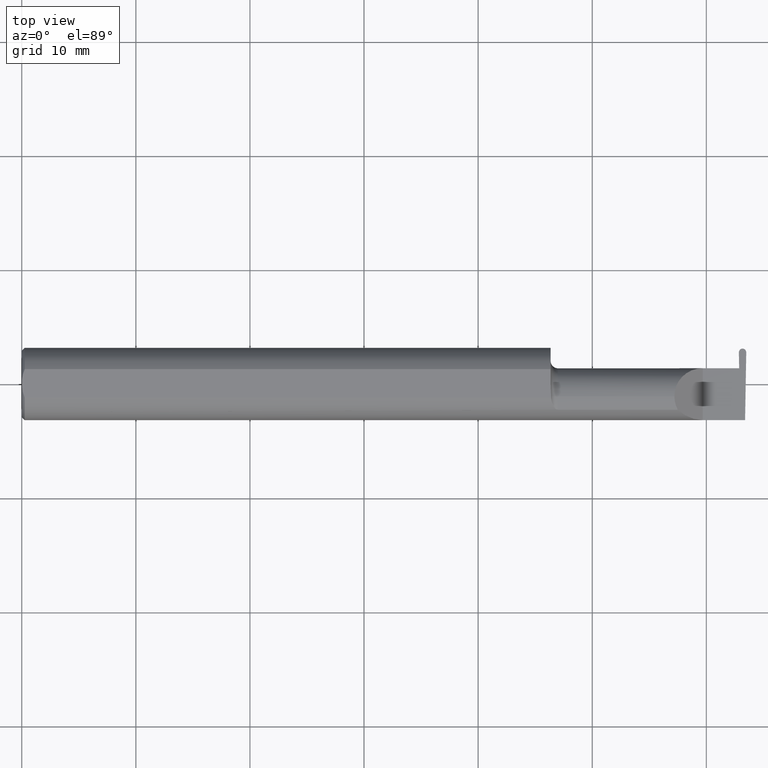
[diagram: clean part render]
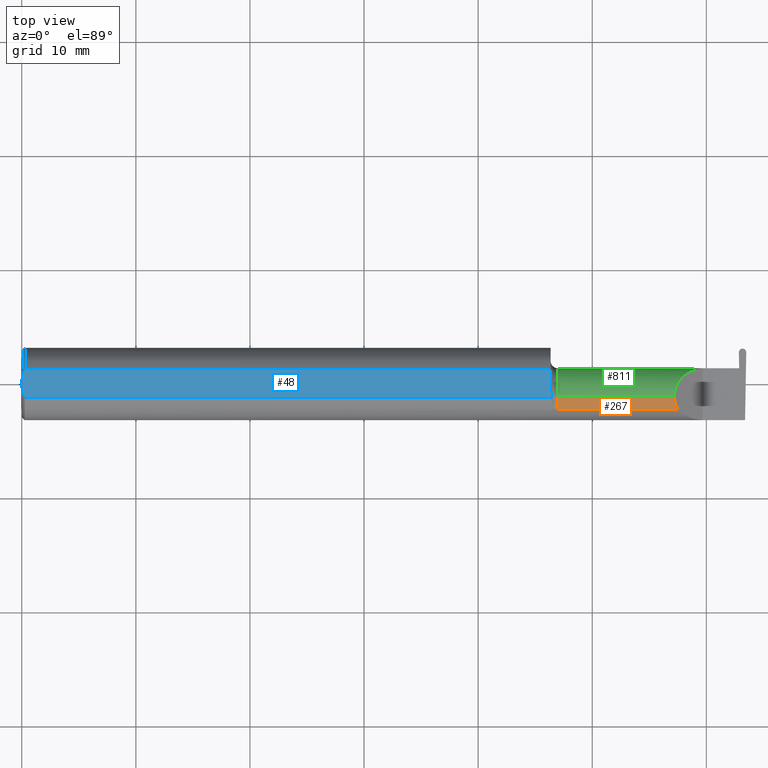
[diagram: same view with three faces highlighted in distinct colors, each labeled with its STEP entity id]
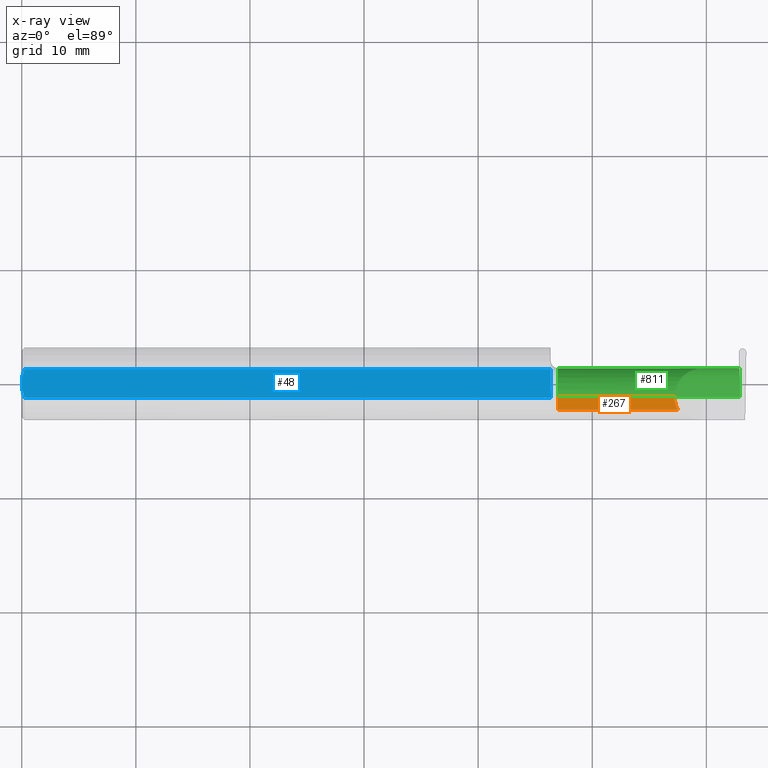
[diagram: x-ray of the same camera — body ghosted, the three highlighted faces saturated]
A machine part, top view with three faces highlighted in distinct colors.
The next image is the same camera in x-ray (body ghosted, the three faces saturated) — at least one of them is partly hidden behind the body in this view.
Their STEP definitions:

[orange] entity #267 — the highlighted cylindrical surface (edge-blend (fillet) strip) has radius 2.4892 mm, axis along (-1, -0, -0).
#1 = DIRECTION ( 'NONE',  ( -1.000000000000000000, -0.000000000000000000, -0.000000000000000000 ) ) ;
#25 = ORIENTED_EDGE ( 'NONE', *, *, #634, .T. ) ;
#28 = CIRCLE ( 'NONE', #102, 0.09800000000000003153 ) ;
#60 = DIRECTION ( 'NONE',  ( -1.000000000000000000, -0.000000000000000000, -0.000000000000000000 ) ) ;
#67 = LINE ( 'NONE', #569, #700 ) ;
#94 = VECTOR ( 'NONE', #320, 39.37007874015748143 ) ;
#102 = AXIS2_PLACEMENT_3D ( 'NONE', #376, #682, #456 ) ;
#124 = CYLINDRICAL_SURFACE ( 'NONE', #790, 0.09800000000000003153 ) ;
#130 = ORIENTED_EDGE ( 'NONE', *, *, #315, .T. ) ;
#133 = VERTEX_POINT ( 'NONE', #537 ) ;
#139 = CARTESIAN_POINT ( 'NONE',  ( 2.255977500337024377, -0.07607783494366260335, 0.09402249966297457351 ) ) ;
#173 = ORIENTED_EDGE ( 'NONE', *, *, #219, .F. ) ;
#200 = CARTESIAN_POINT ( 'NONE',  ( 1.849999999999999867, -0.04400000000000004602, 0.09800000000000003153 ) ) ;
#219 = EDGE_CURVE ( 'NONE', #133, #266, #28, .T. ) ;
#230 = CARTESIAN_POINT ( 'NONE',  ( 2.263691591372603895, -0.09042045454545419303, 0.08630840862739529162 ) ) ;
#266 = VERTEX_POINT ( 'NONE', #200 ) ;
#267 = ADVANCED_FACE ( 'NONE', ( #614 ), #124, .T. ) ;
#313 = CARTESIAN_POINT ( 'NONE',  ( 1.824999999999999956, -0.04400000000000004602, 0.000000000000000000 ) ) ;
#315 = EDGE_CURVE ( 'NONE', #635, #266, #67, .T. ) ;
#320 = DIRECTION ( 'NONE',  ( 1.000000000000000000, 0.000000000000000000, 0.000000000000000000 ) ) ;
#359 = EDGE_CURVE ( 'NONE', #495, #635, #427, .T. ) ;
#376 = CARTESIAN_POINT ( 'NONE',  ( 1.849999999999999867, -0.04400000000000004602, 0.000000000000000000 ) ) ;
#379 = CARTESIAN_POINT ( 'NONE',  ( 2.251999999999998892, -0.04400000000000004602, 0.09800000000000003153 ) ) ;
#391 = ORIENTED_EDGE ( 'NONE', *, *, #359, .T. ) ;
#410 = CARTESIAN_POINT ( 'NONE',  ( 2.251999999999998892, -0.06028551311893192571, 0.09800000000000003153 ) ) ;
#427 =( BOUNDED_CURVE ( )  B_SPLINE_CURVE ( 3, ( #781, #139, #410, #525 ),
 .UNSPECIFIED., .F., .T. ) 
 B_SPLINE_CURVE_WITH_KNOTS ( ( 4, 4 ),
 ( 5.789722842198298025, 6.283185307179586232 ),
 .UNSPECIFIED. ) 
 CURVE ( )  GEOMETRIC_REPRESENTATION_ITEM ( )  RATIONAL_B_SPLINE_CURVE ( ( 1.000000000000000000, 0.9798106333074688701, 0.9798106333074688701, 1.000000000000000000 ) ) 
 REPRESENTATION_ITEM ( '' )  );
#456 = DIRECTION ( 'NONE',  ( 0.000000000000000000, 0.000000000000000000, 1.000000000000000000 ) ) ;
#495 = VERTEX_POINT ( 'NONE', #230 ) ;
#525 = CARTESIAN_POINT ( 'NONE',  ( 2.251999999999998892, -0.04400000000000004602, 0.09800000000000003153 ) ) ;
#537 = CARTESIAN_POINT ( 'NONE',  ( 1.849999999999999867, -0.09042045454545430405, 0.08630840862739518060 ) ) ;
#569 = CARTESIAN_POINT ( 'NONE',  ( 1.824999999999999956, -0.04400000000000004602, 0.09800000000000003153 ) ) ;
#601 = LINE ( 'NONE', #805, #94 ) ;
#614 = FACE_OUTER_BOUND ( 'NONE', #722, .T. ) ;
#634 = EDGE_CURVE ( 'NONE', #133, #495, #601, .T. ) ;
#635 = VERTEX_POINT ( 'NONE', #379 ) ;
#682 = DIRECTION ( 'NONE',  ( -1.000000000000000000, -0.000000000000000000, -0.000000000000000000 ) ) ;
#700 = VECTOR ( 'NONE', #1, 39.37007874015748143 ) ;
#722 = EDGE_LOOP ( 'NONE', ( #391, #130, #173, #25 ) ) ;
#781 = CARTESIAN_POINT ( 'NONE',  ( 2.263691591372603895, -0.09042045454545419303, 0.08630840862739529162 ) ) ;
#790 = AXIS2_PLACEMENT_3D ( 'NONE', #313, #60, #806 ) ;
#805 = CARTESIAN_POINT ( 'NONE',  ( 2.162237909999999985, -0.09042045454545441507, 0.08630840862739512509 ) ) ;
#806 = DIRECTION ( 'NONE',  ( 0.000000000000000000, 0.000000000000000000, 1.000000000000000000 ) ) ;

[blue] entity #48 — the highlighted planar face has unit normal (0, 0, 1).
#11 = ORIENTED_EDGE ( 'NONE', *, *, #184, .F. ) ;
#24 = CARTESIAN_POINT ( 'NONE',  ( 1.824999999999999956, -0.0003651515414570668193, 0.1149999999999999217 ) ) ;
#26 = CARTESIAN_POINT ( 'NONE',  ( 2.753179778023443269, 0.1250000000000000278, 0.1149999999999999217 ) ) ;
#38 = EDGE_CURVE ( 'NONE', #690, #465, #174, .T. ) ;
#48 = ADVANCED_FACE ( 'NONE', ( #597 ), #137, .T. ) ;
#55 = CARTESIAN_POINT ( 'NONE',  ( 0.000000000000000000, 0.04898979485566374442, 0.1149999999999999217 ) ) ;
#84 = CARTESIAN_POINT ( 'NONE',  ( 1.824999999999999956, -0.0003651515414570668193, 0.1149999999999999217 ) ) ;
#109 = CARTESIAN_POINT ( 'NONE',  ( 1.826314561435346207, -0.04400000000000004602, 0.1149999999999999217 ) ) ;
#127 = CARTESIAN_POINT ( 'NONE',  ( 0.000000000000000000, -0.04898979485566374442, 0.1149999999999999217 ) ) ;
#129 = VERTEX_POINT ( 'NONE', #291 ) ;
#137 = PLANE ( 'NONE',  #226 ) ;
#152 = B_SPLINE_CURVE_WITH_KNOTS ( 'NONE', 3,
 ( #796, #788, #225, #420, #812, #630 ),
 .UNSPECIFIED., .F., .F.,
 ( 4, 2, 4 ),
 ( 0.001061950514642623312, 0.001696734447512964709, 0.002331518380383306322 ),
 .UNSPECIFIED. ) ;
#174 = B_SPLINE_CURVE_WITH_KNOTS ( 'NONE', 3,
 ( #644, #346, #591, #706, #651, #84 ),
 .UNSPECIFIED., .F., .F.,
 ( 4, 2, 4 ),
 ( 0.009445492519198586678, 0.009997058688341184038, 0.01054862485748378140 ),
 .UNSPECIFIED. ) ;
#184 = EDGE_CURVE ( 'NONE', #767, #129, #152, .T. ) ;
#185 = LINE ( 'NONE', #214, #227 ) ;
#194 = ORIENTED_EDGE ( 'NONE', *, *, #738, .T. ) ;
#197 = CARTESIAN_POINT ( 'NONE',  ( 1.642610067308552155E-16, 0.01684316307400865464, 0.1149999999999999217 ) ) ;
#214 = CARTESIAN_POINT ( 'NONE',  ( 1.824999999999999956, 0.1250000000000000278, 0.1149999999999999217 ) ) ;
#225 = CARTESIAN_POINT ( 'NONE',  ( 0.004414142251465132810, -0.03315347577847933824, 0.1149999999999999356 ) ) ;
#226 = AXIS2_PLACEMENT_3D ( 'NONE', #26, #335, #396 ) ;
#227 = VECTOR ( 'NONE', #584, 39.37007874015748143 ) ;
#239 = EDGE_CURVE ( 'NONE', #129, #684, #629, .T. ) ;
#249 = LINE ( 'NONE', #127, #616 ) ;
#254 = EDGE_CURVE ( 'NONE', #808, #690, #435, .T. ) ;
#255 = CARTESIAN_POINT ( 'NONE',  ( 1.826299368641400855, -0.04732662288241423765, 0.1149999999999999356 ) ) ;
#260 = DIRECTION ( 'NONE',  ( -1.000000000000000000, -0.000000000000000000, -0.000000000000000000 ) ) ;
#268 = CARTESIAN_POINT ( 'NONE',  ( 1.826278290187167919, -0.04898979485482030799, 0.1149999999999999217 ) ) ;
#285 = VECTOR ( 'NONE', #260, 39.37007874015748143 ) ;
#291 = CARTESIAN_POINT ( 'NONE',  ( 0.000000000000000000, 3.414809992080329023E-17, 0.1149999999999999217 ) ) ;
#295 = EDGE_LOOP ( 'NONE', ( #194, #503, #449, #759, #654, #672, #11 ) ) ;
#321 = CARTESIAN_POINT ( 'NONE',  ( 1.826314561435345762, -0.04483155449642588219, 0.1149999999999999356 ) ) ;
#330 = EDGE_CURVE ( 'NONE', #465, #726, #185, .T. ) ;
#335 = DIRECTION ( 'NONE',  ( 0.000000000000000000, 0.000000000000000000, 1.000000000000000000 ) ) ;
#346 = CARTESIAN_POINT ( 'NONE',  ( 1.826314561435345762, -0.03672135622230197904, 0.1149999999999999356 ) ) ;
#380 = CARTESIAN_POINT ( 'NONE',  ( 0.003880275146595849479, 0.03337499979622342988, 0.1149999999999999217 ) ) ;
#396 = DIRECTION ( 'NONE',  ( 1.000000000000000000, 0.000000000000000000, -0.000000000000000000 ) ) ;
#420 = CARTESIAN_POINT ( 'NONE',  ( 0.0009328476361608245343, -0.01672844127736827086, 0.1149999999999999217 ) ) ;
#435 = B_SPLINE_CURVE_WITH_KNOTS ( 'NONE', 3,
 ( #447, #693, #255, #437, #321, #687 ),
 .UNSPECIFIED., .F., .F.,
 ( 4, 2, 4 ),
 ( 0.009319464280412609325, 0.009382478399805598002, 0.009445492519198586678 ),
 .UNSPECIFIED. ) ;
#437 = CARTESIAN_POINT ( 'NONE',  ( 1.826311508822838103, -0.04566321385529986676, 0.1149999999999999217 ) ) ;
#447 = CARTESIAN_POINT ( 'NONE',  ( 1.826278290187167919, -0.04898979485482030799, 0.1149999999999999217 ) ) ;
#449 = ORIENTED_EDGE ( 'NONE', *, *, #38, .T. ) ;
#451 = CARTESIAN_POINT ( 'NONE',  ( 0.000000000000000000, 3.414809992080329023E-17, 0.1149999999999999217 ) ) ;
#465 = VERTEX_POINT ( 'NONE', #24 ) ;
#503 = ORIENTED_EDGE ( 'NONE', *, *, #254, .T. ) ;
#505 = CARTESIAN_POINT ( 'NONE',  ( 1.824999999999999956, 0.04898979485566374442, 0.1149999999999999217 ) ) ;
#560 = CARTESIAN_POINT ( 'NONE',  ( 0.01000000000000042348, 0.04898979485566374442, 0.1149999999999999217 ) ) ;
#584 = DIRECTION ( 'NONE',  ( 0.000000000000000000, 1.000000000000000000, 0.000000000000000000 ) ) ;
#591 = CARTESIAN_POINT ( 'NONE',  ( 1.826049928736321215, -0.02945016372790500853, 0.1149999999999999356 ) ) ;
#597 = FACE_OUTER_BOUND ( 'NONE', #295, .T. ) ;
#616 = VECTOR ( 'NONE', #745, 39.37007874015748143 ) ;
#621 = CARTESIAN_POINT ( 'NONE',  ( 0.01000000000000042348, 0.04898979485566374442, 0.1149999999999999217 ) ) ;
#629 = B_SPLINE_CURVE_WITH_KNOTS ( 'NONE', 3,
 ( #451, #197, #380, #560 ),
 .UNSPECIFIED., .F., .F.,
 ( 4, 4 ),
 ( 0.002331518380383306322, 0.003601362264757408584 ),
 .UNSPECIFIED. ) ;
#630 = CARTESIAN_POINT ( 'NONE',  ( 0.000000000000000000, 3.414809992080329023E-17, 0.1149999999999999217 ) ) ;
#644 = CARTESIAN_POINT ( 'NONE',  ( 1.826314561435346207, -0.04400000000000004602, 0.1149999999999999217 ) ) ;
#651 = CARTESIAN_POINT ( 'NONE',  ( 1.824999999999999734, -0.007643795319155096551, 0.1149999999999999356 ) ) ;
#654 = ORIENTED_EDGE ( 'NONE', *, *, #677, .T. ) ;
#672 = ORIENTED_EDGE ( 'NONE', *, *, #239, .F. ) ;
#674 = LINE ( 'NONE', #55, #285 ) ;
#677 = EDGE_CURVE ( 'NONE', #726, #684, #674, .T. ) ;
#684 = VERTEX_POINT ( 'NONE', #621 ) ;
#687 = CARTESIAN_POINT ( 'NONE',  ( 1.826314561435346207, -0.04400000000000004602, 0.1149999999999999217 ) ) ;
#690 = VERTEX_POINT ( 'NONE', #109 ) ;
#693 = CARTESIAN_POINT ( 'NONE',  ( 1.826290282237992502, -0.04815824739940594706, 0.1149999999999999356 ) ) ;
#706 = CARTESIAN_POINT ( 'NONE',  ( 1.825386034718894157, -0.01491156948752241085, 0.1149999999999999217 ) ) ;
#726 = VERTEX_POINT ( 'NONE', #505 ) ;
#738 = EDGE_CURVE ( 'NONE', #767, #808, #249, .T. ) ;
#745 = DIRECTION ( 'NONE',  ( 1.000000000000000000, 0.000000000000000000, 0.000000000000000000 ) ) ;
#759 = ORIENTED_EDGE ( 'NONE', *, *, #330, .T. ) ;
#765 = CARTESIAN_POINT ( 'NONE',  ( 0.01000000000000042348, -0.04898979485566374442, 0.1149999999999999217 ) ) ;
#767 = VERTEX_POINT ( 'NONE', #765 ) ;
#788 = CARTESIAN_POINT ( 'NONE',  ( 0.006956794985978487743, -0.04122489957750442163, 0.1149999999999999356 ) ) ;
#796 = CARTESIAN_POINT ( 'NONE',  ( 0.01000000000000042348, -0.04898979485566374442, 0.1149999999999999217 ) ) ;
#808 = VERTEX_POINT ( 'NONE', #268 ) ;
#812 = CARTESIAN_POINT ( 'NONE',  ( 1.541666659510484467E-16, -0.008419750986449443114, 0.1149999999999999356 ) ) ;

[green] entity #811 — the highlighted cylindrical surface (edge-blend (fillet) strip) has radius 2.4892 mm, axis along (-1, -0, -0).
#1 = DIRECTION ( 'NONE',  ( -1.000000000000000000, -0.000000000000000000, -0.000000000000000000 ) ) ;
#23 = FACE_OUTER_BOUND ( 'NONE', #747, .T. ) ;
#49 = CARTESIAN_POINT ( 'NONE',  ( 1.824999999999999956, 0.05399999999999997163, 8.266365894244625705E-17 ) ) ;
#53 = CARTESIAN_POINT ( 'NONE',  ( 2.251999999999999336, 0.01340707088743663469, 0.09799999999999998990 ) ) ;
#61 = VERTEX_POINT ( 'NONE', #773 ) ;
#67 = LINE ( 'NONE', #569, #700 ) ;
#77 = VERTEX_POINT ( 'NONE', #466 ) ;
#88 = VERTEX_POINT ( 'NONE', #741 ) ;
#92 = B_SPLINE_CURVE_WITH_KNOTS ( 'NONE', 3,
 ( #494, #746, #190, #250 ),
 .UNSPECIFIED., .F., .F.,
 ( 4, 4 ),
 ( 0.000000000000000000, 1.000000000000000000 ),
 .UNSPECIFIED. ) ;
#93 = CARTESIAN_POINT ( 'NONE',  ( 1.825000000000000400, 0.05376127692546633224, -0.006836134426873426151 ) ) ;
#95 = CARTESIAN_POINT ( 'NONE',  ( 2.350000000000000089, 0.05399999999999997163, 8.266365894244625705E-17 ) ) ;
#96 = VERTEX_POINT ( 'NONE', #353 ) ;
#128 = CARTESIAN_POINT ( 'NONE',  ( 1.824999999999999956, -0.04400000000000003908, -0.09800000000000003153 ) ) ;
#158 = CARTESIAN_POINT ( 'NONE',  ( 2.292592929112562405, 0.05399999999999997163, 0.05740707088743673275 ) ) ;
#163 = CARTESIAN_POINT ( 'NONE',  ( 2.478970497252991123, 0.01027834358092160651, -0.09800000000000004541 ) ) ;
#182 = EDGE_CURVE ( 'NONE', #635, #61, #809, .T. ) ;
#190 = CARTESIAN_POINT ( 'NONE',  ( 2.469171538508045938, 0.05392042564182091685, -0.002278711475641423054 ) ) ;
#193 = VECTOR ( 'NONE', #352, 39.37007874015748143 ) ;
#200 = CARTESIAN_POINT ( 'NONE',  ( 1.849999999999999867, -0.04400000000000004602, 0.09800000000000003153 ) ) ;
#203 = CARTESIAN_POINT ( 'NONE',  ( 1.824999999999999956, -0.04400000000000004602, 0.000000000000000000 ) ) ;
#224 = CARTESIAN_POINT ( 'NONE',  ( 2.479037770930198725, -0.04400000000000004602, -0.09800000000000001765 ) ) ;
#240 = VECTOR ( 'NONE', #384, 39.37007874015748143 ) ;
#245 = EDGE_CURVE ( 'NONE', #319, #96, #92, .T. ) ;
#250 = CARTESIAN_POINT ( 'NONE',  ( 2.469251112866224673, 0.05399999999999999245, 0.000000000000000000 ) ) ;
#252 = ORIENTED_EDGE ( 'NONE', *, *, #182, .T. ) ;
#257 = VECTOR ( 'NONE', #478, 39.37007874015748143 ) ;
#266 = VERTEX_POINT ( 'NONE', #200 ) ;
#276 = CYLINDRICAL_SURFACE ( 'NONE', #375, 0.09800000000000003153 ) ;
#297 = EDGE_CURVE ( 'NONE', #88, #453, #564, .T. ) ;
#306 = ORIENTED_EDGE ( 'NONE', *, *, #567, .F. ) ;
#315 = EDGE_CURVE ( 'NONE', #635, #266, #67, .T. ) ;
#319 = VERTEX_POINT ( 'NONE', #749 ) ;
#324 =( BOUNDED_CURVE ( )  B_SPLINE_CURVE ( 3, ( #224, #163, #418, #659 ),
 .UNSPECIFIED., .F., .T. ) 
 B_SPLINE_CURVE_WITH_KNOTS ( ( 4, 4 ),
 ( 3.176499238629679756, 4.677482395344806143 ),
 .UNSPECIFIED. ) 
 CURVE ( )  GEOMETRIC_REPRESENTATION_ITEM ( )  RATIONAL_B_SPLINE_CURVE ( ( 1.000000000000000000, 0.8209024677461128627, 0.8209024677461128627, 1.000000000000000000 ) ) 
 REPRESENTATION_ITEM ( '' )  );
#345 = DIRECTION ( 'NONE',  ( 0.000000000000000000, 0.000000000000000000, 1.000000000000000000 ) ) ;
#352 = DIRECTION ( 'NONE',  ( -1.000000000000000000, -0.000000000000000000, -0.000000000000000000 ) ) ;
#353 = CARTESIAN_POINT ( 'NONE',  ( 2.469251112866224673, 0.05399999999999999245, 0.000000000000000000 ) ) ;
#375 = AXIS2_PLACEMENT_3D ( 'NONE', #203, #587, #716 ) ;
#379 = CARTESIAN_POINT ( 'NONE',  ( 2.251999999999998892, -0.04400000000000004602, 0.09800000000000003153 ) ) ;
#384 = DIRECTION ( 'NONE',  ( -1.000000000000000000, -0.000000000000000000, -0.000000000000000000 ) ) ;
#408 = CARTESIAN_POINT ( 'NONE',  ( 1.849999999999999867, -0.04400000000000004602, 0.000000000000000000 ) ) ;
#418 = CARTESIAN_POINT ( 'NONE',  ( 2.477607449706651810, 0.04997501107658576525, -0.06098225869090258960 ) ) ;
#452 = ORIENTED_EDGE ( 'NONE', *, *, #596, .T. ) ;
#453 = VERTEX_POINT ( 'NONE', #633 ) ;
#459 = EDGE_CURVE ( 'NONE', #266, #453, #595, .T. ) ;
#466 = CARTESIAN_POINT ( 'NONE',  ( 2.475680983646864952, 0.05376127692546957271, -0.006836134426924433960 ) ) ;
#478 = DIRECTION ( 'NONE',  ( 1.000000000000000000, 0.000000000000000000, 0.000000000000000000 ) ) ;
#494 = CARTESIAN_POINT ( 'NONE',  ( 2.469012389791687578, 0.05376127692546276565, -0.006836134426924275233 ) ) ;
#526 = ORIENTED_EDGE ( 'NONE', *, *, #245, .F. ) ;
#564 = LINE ( 'NONE', #128, #240 ) ;
#565 = ORIENTED_EDGE ( 'NONE', *, *, #297, .T. ) ;
#567 = EDGE_CURVE ( 'NONE', #77, #319, #792, .T. ) ;
#569 = CARTESIAN_POINT ( 'NONE',  ( 1.824999999999999956, -0.04400000000000004602, 0.09800000000000003153 ) ) ;
#575 = DIRECTION ( 'NONE',  ( -1.000000000000000000, -0.000000000000000000, -0.000000000000000000 ) ) ;
#586 = ORIENTED_EDGE ( 'NONE', *, *, #604, .F. ) ;
#587 = DIRECTION ( 'NONE',  ( -1.000000000000000000, -0.000000000000000000, -0.000000000000000000 ) ) ;
#595 = CIRCLE ( 'NONE', #656, 0.09800000000000003153 ) ;
#596 = EDGE_CURVE ( 'NONE', #61, #96, #728, .T. ) ;
#604 = EDGE_CURVE ( 'NONE', #88, #77, #324, .T. ) ;
#612 = CARTESIAN_POINT ( 'NONE',  ( 2.251999999999998892, -0.04400000000000004602, 0.09800000000000003153 ) ) ;
#633 = CARTESIAN_POINT ( 'NONE',  ( 1.849999999999999867, -0.04400000000000003908, -0.09800000000000003153 ) ) ;
#635 = VERTEX_POINT ( 'NONE', #379 ) ;
#656 = AXIS2_PLACEMENT_3D ( 'NONE', #408, #575, #345 ) ;
#659 = CARTESIAN_POINT ( 'NONE',  ( 2.475680983646864952, 0.05376127692546957271, -0.006836134426924433960 ) ) ;
#663 = ORIENTED_EDGE ( 'NONE', *, *, #459, .F. ) ;
#694 = ORIENTED_EDGE ( 'NONE', *, *, #315, .F. ) ;
#700 = VECTOR ( 'NONE', #1, 39.37007874015748143 ) ;
#716 = DIRECTION ( 'NONE',  ( 0.000000000000000000, 0.000000000000000000, 1.000000000000000000 ) ) ;
#728 = LINE ( 'NONE', #49, #257 ) ;
#741 = CARTESIAN_POINT ( 'NONE',  ( 2.479037770930198725, -0.04400000000000004602, -0.09800000000000001765 ) ) ;
#746 = CARTESIAN_POINT ( 'NONE',  ( 2.469091964149866314, 0.05384085128364183431, -0.004557422951282846975 ) ) ;
#747 = EDGE_LOOP ( 'NONE', ( #586, #565, #663, #694, #252, #452, #526, #306 ) ) ;
#749 = CARTESIAN_POINT ( 'NONE',  ( 2.469012389791687578, 0.05376127692546276565, -0.006836134426924275233 ) ) ;
#773 = CARTESIAN_POINT ( 'NONE',  ( 2.350000000000000089, 0.05399999999999997163, 8.266365894244625705E-17 ) ) ;
#792 = LINE ( 'NONE', #93, #193 ) ;
#809 =( BOUNDED_CURVE ( )  B_SPLINE_CURVE ( 3, ( #612, #53, #158, #95 ),
 .UNSPECIFIED., .F., .T. ) 
 B_SPLINE_CURVE_WITH_KNOTS ( ( 4, 4 ),
 ( 0.000000000000000000, 1.570796326794896114 ),
 .UNSPECIFIED. ) 
 CURVE ( )  GEOMETRIC_REPRESENTATION_ITEM ( )  RATIONAL_B_SPLINE_CURVE ( ( 1.000000000000000000, 0.8047378541243650485, 0.8047378541243650485, 1.000000000000000000 ) ) 
 REPRESENTATION_ITEM ( '' )  );
#811 = ADVANCED_FACE ( 'NONE', ( #23 ), #276, .T. ) ;